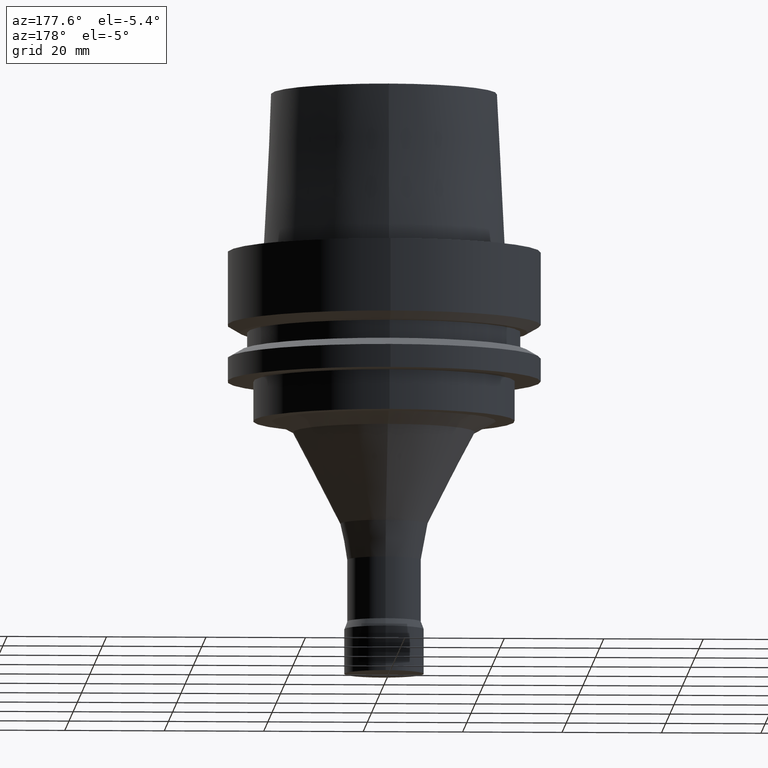
[diagram: clean part render]
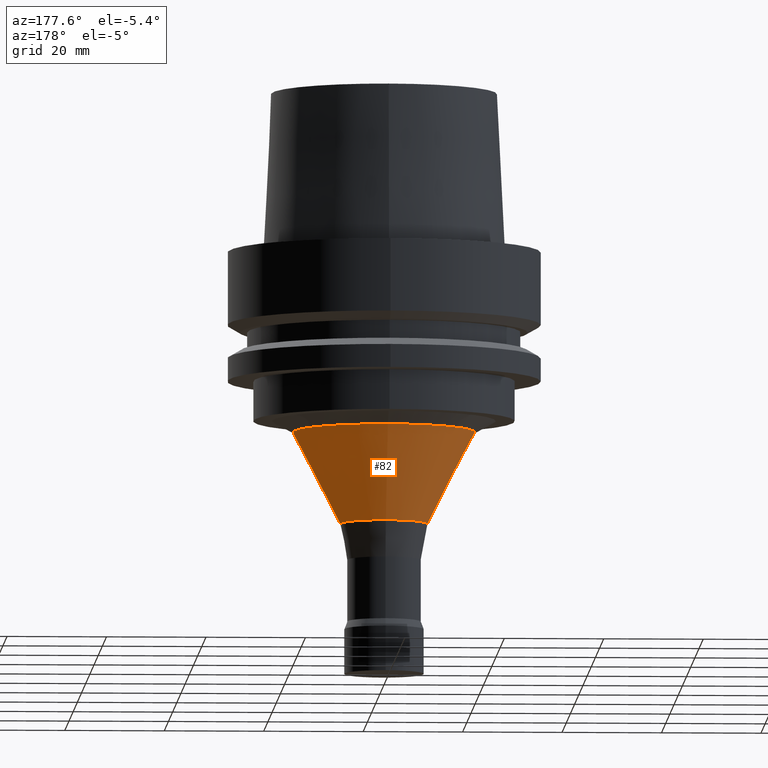
[diagram: same view with one face highlighted and labeled with its STEP entity id]
A machine part, auxiliary view. The second image highlights one B-rep face of the part: STEP entity #82.
In plain terms, the highlighted conical surface has half-angle 27.349 deg.
Its self-contained STEP definition (entity closure, byte-faithful):
#82=ADVANCED_FACE('',(#117,#118),#119,.T.);
#117=FACE_BOUND('',#175,.T.);
#118=FACE_BOUND('',#176,.T.);
#119=CONICAL_SURFACE('',#177,13.5493881837533,0.477337907353913);
#175=EDGE_LOOP('',(#247));
#176=EDGE_LOOP('',(#248));
#177=AXIS2_PLACEMENT_3D('',#249,#250,#251);
#247=ORIENTED_EDGE('',*,*,#318,.F.);
#248=ORIENTED_EDGE('',*,*,#317,.T.);
#249=CARTESIAN_POINT('',(2.78486713135817E-015,5.56973426271635E-015,-45.4803316890569));
#250=DIRECTION('',(-6.12323399573677E-017,-1.22464679914735E-016,1.0));
#251=DIRECTION('',(-1.23259516440783E-032,1.0,1.22464679914735E-016));
#317=EDGE_CURVE('',#343,#343,#344,.T.);
#318=EDGE_CURVE('',#345,#345,#346,.T.);
#343=VERTEX_POINT('',#381);
#344=CIRCLE('',#382,18.3215266320372);
#345=VERTEX_POINT('',#383);
#346=CIRCLE('',#384,8.77724973546938);
#381=CARTESIAN_POINT('',(2.21991898863282E-015,18.3215266320372,-36.2540283480659));
#382=AXIS2_PLACEMENT_3D('',#426,#427,#428);
#383=CARTESIAN_POINT('',(3.34981527408353E-015,8.77724973546939,-54.7066350300479));
#384=AXIS2_PLACEMENT_3D('',#429,#430,#431);
#426=CARTESIAN_POINT('',(2.21991898863282E-015,4.43983797726563E-015,-36.2540283480659));
#427=DIRECTION('',(6.12323399573677E-017,1.22464679914735E-016,-1.0));
#428=DIRECTION('',(-1.23259516440783E-032,1.0,1.22464679914735E-016));
#429=CARTESIAN_POINT('',(3.34981527408353E-015,6.69963054816706E-015,-54.7066350300479));
#430=DIRECTION('',(6.12323399573677E-017,1.22464679914735E-016,-1.0));
#431=DIRECTION('',(-1.23259516440783E-032,1.0,1.22464679914735E-016));